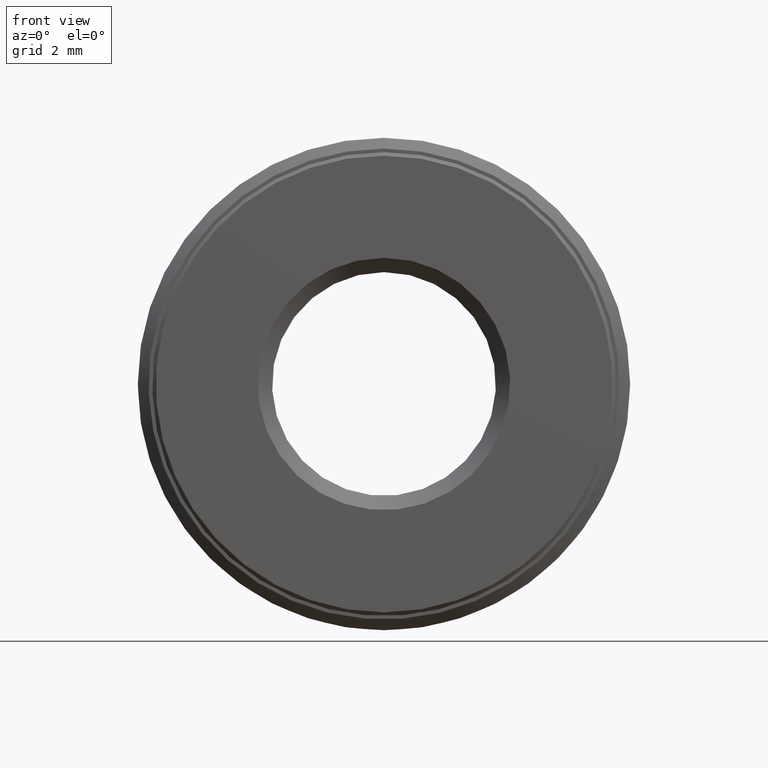
[diagram: clean part render]
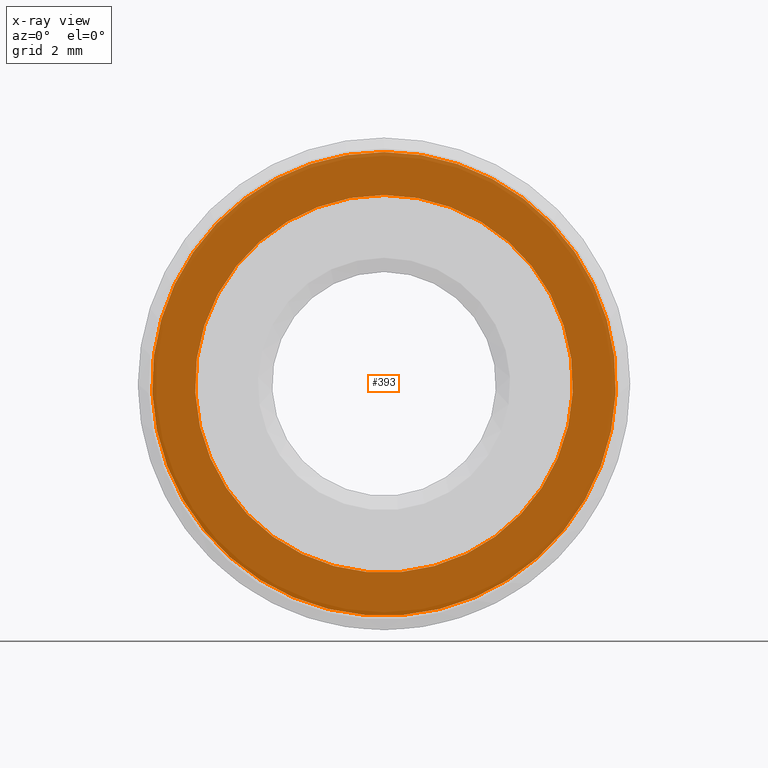
[diagram: x-ray — body ghosted, one internal face saturated and labeled with its STEP entity id]
A machine part, front view, then the same camera in x-ray: the body is ghosted and one INTERNAL B-rep face — a face not visible from any outside direction — is saturated and labeled: STEP entity #393.
In plain terms, the highlighted planar face has unit normal (-0, 1, 0).
Its self-contained STEP definition (entity closure, byte-faithful):
#13 = DIRECTION ( 'NONE',  ( 0.0000000000000000000, 0.0000000000000000000, 1.000000000000000000 ) ) ;
#28 = AXIS2_PLACEMENT_3D ( 'NONE', #387, #445, #13 ) ;
#33 = ORIENTED_EDGE ( 'NONE', *, *, #584, .F. ) ;
#117 = EDGE_LOOP ( 'NONE', ( #33 ) ) ;
#126 = CARTESIAN_POINT ( 'NONE',  ( 0.0000000000000000000, 0.2775000000000000200, 0.3237499999999999300 ) ) ;
#140 = AXIS2_PLACEMENT_3D ( 'NONE', #156, #536, #197 ) ;
#156 = CARTESIAN_POINT ( 'NONE',  ( 0.0000000000000000000, 0.2775000000000000200, 0.0000000000000000000 ) ) ;
#169 = CIRCLE ( 'NONE', #140, 0.2637499999999999300 ) ;
#197 = DIRECTION ( 'NONE',  ( 0.0000000000000000000, 0.0000000000000000000, 1.000000000000000000 ) ) ;
#227 = FACE_BOUND ( 'NONE', #305, .T. ) ;
#305 = EDGE_LOOP ( 'NONE', ( #516 ) ) ;
#343 = PLANE ( 'NONE',  #28 ) ;
#348 = AXIS2_PLACEMENT_3D ( 'NONE', #448, #587, #494 ) ;
#378 = VERTEX_POINT ( 'NONE', #537 ) ;
#387 = CARTESIAN_POINT ( 'NONE',  ( 0.0000000000000000000, 0.2775000000000000200, 0.0000000000000000000 ) ) ;
#393 = ADVANCED_FACE ( 'NONE', ( #533, #227 ), #343, .F. ) ;
#410 = CIRCLE ( 'NONE', #348, 0.3237499999999999300 ) ;
#445 = DIRECTION ( 'NONE',  ( -0.0000000000000000000, 1.000000000000000000, 0.0000000000000000000 ) ) ;
#448 = CARTESIAN_POINT ( 'NONE',  ( 0.0000000000000000000, 0.2775000000000000200, 0.0000000000000000000 ) ) ;
#464 = EDGE_CURVE ( 'NONE', #378, #378, #169, .T. ) ;
#494 = DIRECTION ( 'NONE',  ( 0.0000000000000000000, 0.0000000000000000000, 1.000000000000000000 ) ) ;
#516 = ORIENTED_EDGE ( 'NONE', *, *, #464, .T. ) ;
#533 = FACE_OUTER_BOUND ( 'NONE', #117, .T. ) ;
#536 = DIRECTION ( 'NONE',  ( -0.0000000000000000000, 1.000000000000000000, -0.0000000000000000000 ) ) ;
#537 = CARTESIAN_POINT ( 'NONE',  ( 0.0000000000000000000, 0.2775000000000000200, 0.2637499999999999300 ) ) ;
#582 = VERTEX_POINT ( 'NONE', #126 ) ;
#584 = EDGE_CURVE ( 'NONE', #582, #582, #410, .T. ) ;
#587 = DIRECTION ( 'NONE',  ( -0.0000000000000000000, 1.000000000000000000, -0.0000000000000000000 ) ) ;